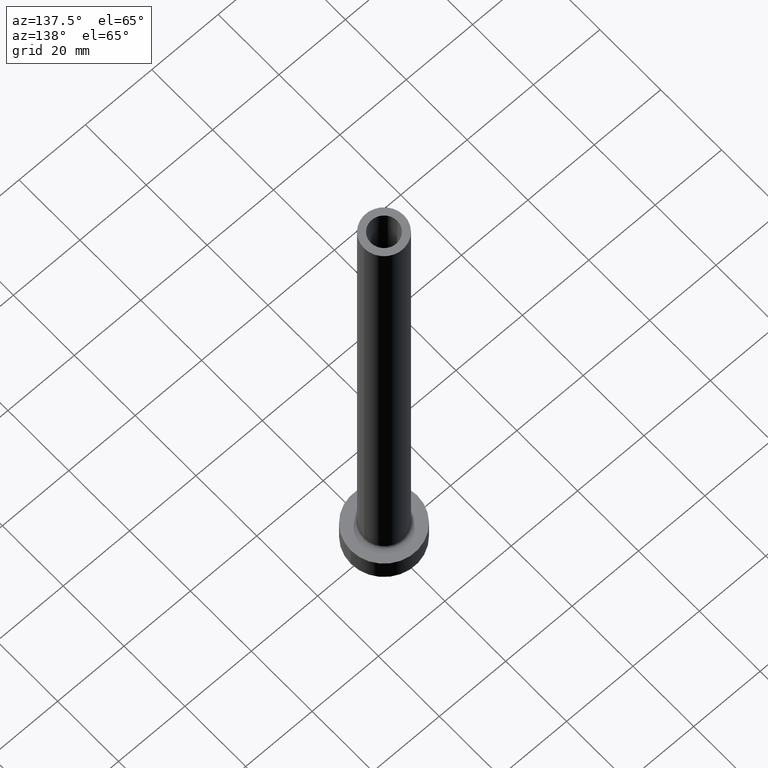
[diagram: clean part render]
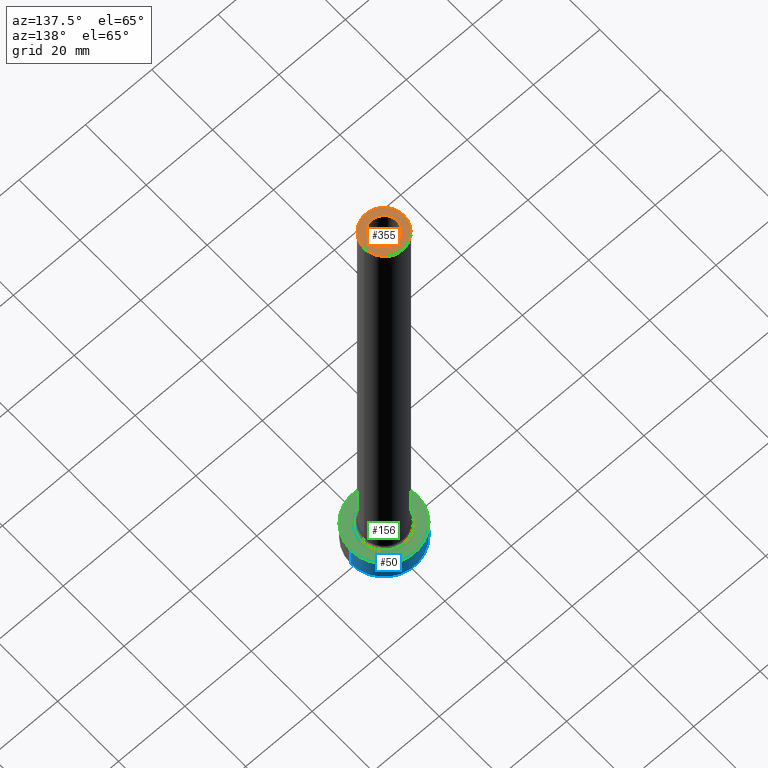
[diagram: same view with three faces highlighted in distinct colors, each labeled with its STEP entity id]
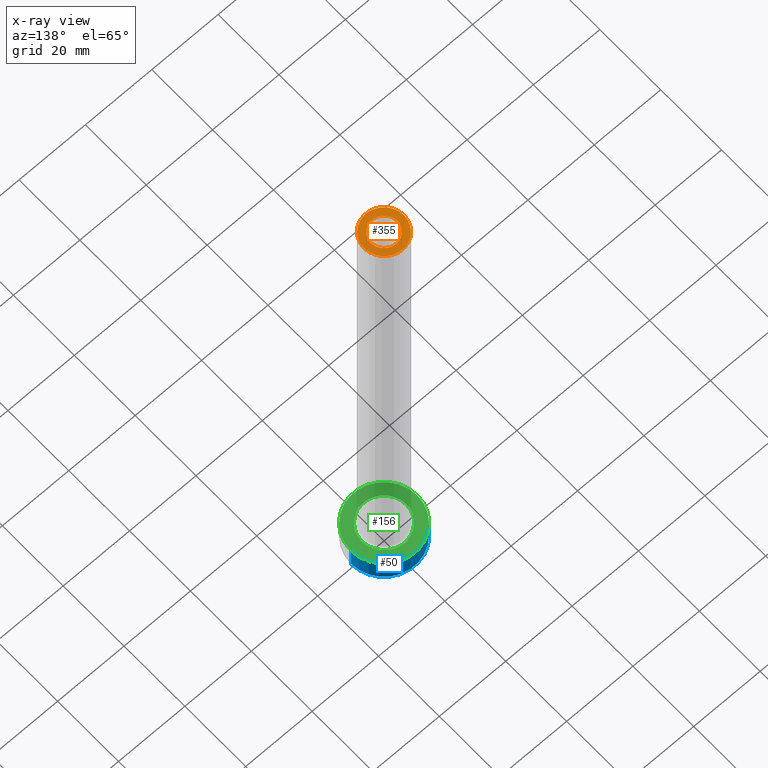
[diagram: x-ray of the same camera — body ghosted, the three highlighted faces saturated]
A machine part, auxiliary view with three faces highlighted in distinct colors.
The next image is the same camera in x-ray (body ghosted, the three faces saturated) — at least one of them is partly hidden behind the body in this view.
Their STEP definitions:

[orange] entity #355 — the highlighted planar face has unit normal (0, 0, 1).
#17 = CARTESIAN_POINT ( 'NONE',  ( 0.000000000000000000, 0.000000000000000000, 160.0000000000000000 ) ) ;
#18 = VERTEX_POINT ( 'NONE', #268 ) ;
#36 = FACE_BOUND ( 'NONE', #194, .T. ) ;
#37 = CIRCLE ( 'NONE', #177, 4.000000000000000000 ) ;
#41 = EDGE_CURVE ( 'NONE', #332, #313, #269, .T. ) ;
#52 = VERTEX_POINT ( 'NONE', #320 ) ;
#62 = AXIS2_PLACEMENT_3D ( 'NONE', #123, #272, #409 ) ;
#73 = CARTESIAN_POINT ( 'NONE',  ( -6.000000000000000888, 0.000000000000000000, 160.0000000000000000 ) ) ;
#105 = DIRECTION ( 'NONE',  ( 0.000000000000000000, 0.000000000000000000, 1.000000000000000000 ) ) ;
#111 = CARTESIAN_POINT ( 'NONE',  ( 0.000000000000000000, 0.000000000000000000, 160.0000000000000000 ) ) ;
#123 = CARTESIAN_POINT ( 'NONE',  ( 0.000000000000000000, 0.000000000000000000, 160.0000000000000000 ) ) ;
#143 = CARTESIAN_POINT ( 'NONE',  ( 0.000000000000000000, 0.000000000000000000, 160.0000000000000000 ) ) ;
#165 = ORIENTED_EDGE ( 'NONE', *, *, #41, .T. ) ;
#174 = CARTESIAN_POINT ( 'NONE',  ( 0.000000000000000000, 0.000000000000000000, 160.0000000000000000 ) ) ;
#175 = EDGE_CURVE ( 'NONE', #18, #52, #237, .T. ) ;
#177 = AXIS2_PLACEMENT_3D ( 'NONE', #111, #431, #362 ) ;
#179 = DIRECTION ( 'NONE',  ( 1.000000000000000000, 0.000000000000000000, 0.000000000000000000 ) ) ;
#194 = EDGE_LOOP ( 'NONE', ( #412, #264 ) ) ;
#210 = PLANE ( 'NONE',  #461 ) ;
#217 = DIRECTION ( 'NONE',  ( 1.000000000000000000, 0.000000000000000000, -0.000000000000000000 ) ) ;
#222 = EDGE_CURVE ( 'NONE', #52, #18, #37, .T. ) ;
#225 = ORIENTED_EDGE ( 'NONE', *, *, #298, .T. ) ;
#237 = CIRCLE ( 'NONE', #430, 4.000000000000000000 ) ;
#252 = CIRCLE ( 'NONE', #386, 6.000000000000000888 ) ;
#264 = ORIENTED_EDGE ( 'NONE', *, *, #222, .F. ) ;
#268 = CARTESIAN_POINT ( 'NONE',  ( -4.000000000000000000, 0.000000000000000000, 160.0000000000000000 ) ) ;
#269 = CIRCLE ( 'NONE', #62, 6.000000000000000888 ) ;
#272 = DIRECTION ( 'NONE',  ( 0.000000000000000000, 0.000000000000000000, 1.000000000000000000 ) ) ;
#290 = CARTESIAN_POINT ( 'NONE',  ( 6.000000000000000888, 7.347880794884120722E-16, 160.0000000000000000 ) ) ;
#298 = EDGE_CURVE ( 'NONE', #313, #332, #252, .T. ) ;
#313 = VERTEX_POINT ( 'NONE', #290 ) ;
#320 = CARTESIAN_POINT ( 'NONE',  ( 4.000000000000000000, 4.898587196589411843E-16, 160.0000000000000000 ) ) ;
#325 = FACE_OUTER_BOUND ( 'NONE', #420, .T. ) ;
#332 = VERTEX_POINT ( 'NONE', #73 ) ;
#349 = DIRECTION ( 'NONE',  ( 1.000000000000000000, 0.000000000000000000, 0.000000000000000000 ) ) ;
#355 = ADVANCED_FACE ( 'NONE', ( #36, #325 ), #210, .T. ) ;
#362 = DIRECTION ( 'NONE',  ( 1.000000000000000000, 0.000000000000000000, 0.000000000000000000 ) ) ;
#380 = DIRECTION ( 'NONE',  ( 0.000000000000000000, 0.000000000000000000, 1.000000000000000000 ) ) ;
#386 = AXIS2_PLACEMENT_3D ( 'NONE', #174, #398, #179 ) ;
#398 = DIRECTION ( 'NONE',  ( 0.000000000000000000, 0.000000000000000000, 1.000000000000000000 ) ) ;
#409 = DIRECTION ( 'NONE',  ( 1.000000000000000000, 0.000000000000000000, 0.000000000000000000 ) ) ;
#412 = ORIENTED_EDGE ( 'NONE', *, *, #175, .F. ) ;
#420 = EDGE_LOOP ( 'NONE', ( #165, #225 ) ) ;
#430 = AXIS2_PLACEMENT_3D ( 'NONE', #17, #380, #349 ) ;
#431 = DIRECTION ( 'NONE',  ( 0.000000000000000000, 0.000000000000000000, 1.000000000000000000 ) ) ;
#461 = AXIS2_PLACEMENT_3D ( 'NONE', #143, #105, #217 ) ;

[blue] entity #50 — the highlighted cylindrical surface (partial cylindrical patch) has radius 10 mm, axis along (-0, -0, -1).
#6 = VECTOR ( 'NONE', #93, 1000.000000000000000 ) ;
#21 = ORIENTED_EDGE ( 'NONE', *, *, #127, .F. ) ;
#22 = CARTESIAN_POINT ( 'NONE',  ( 10.00000000000000000, 1.224646799147353256E-15, 7.000000000000000000 ) ) ;
#30 = CARTESIAN_POINT ( 'NONE',  ( 0.000000000000000000, 0.000000000000000000, 7.000000000000000000 ) ) ;
#33 = DIRECTION ( 'NONE',  ( 1.000000000000000000, 0.000000000000000000, 0.000000000000000000 ) ) ;
#50 = ADVANCED_FACE ( 'NONE', ( #187 ), #354, .T. ) ;
#55 = CARTESIAN_POINT ( 'NONE',  ( -10.00000000000000000, 0.000000000000000000, 7.000000000000000000 ) ) ;
#57 = LINE ( 'NONE', #22, #370 ) ;
#86 = CARTESIAN_POINT ( 'NONE',  ( -10.00000000000000000, 0.000000000000000000, 0.000000000000000000 ) ) ;
#91 = AXIS2_PLACEMENT_3D ( 'NONE', #139, #245, #318 ) ;
#93 = DIRECTION ( 'NONE',  ( -0.000000000000000000, -0.000000000000000000, -1.000000000000000000 ) ) ;
#99 = CIRCLE ( 'NONE', #229, 10.00000000000000000 ) ;
#115 = EDGE_CURVE ( 'NONE', #304, #407, #257, .T. ) ;
#127 = EDGE_CURVE ( 'NONE', #439, #407, #239, .T. ) ;
#131 = AXIS2_PLACEMENT_3D ( 'NONE', #285, #451, #312 ) ;
#139 = CARTESIAN_POINT ( 'NONE',  ( 0.000000000000000000, 0.000000000000000000, 0.000000000000000000 ) ) ;
#163 = EDGE_CURVE ( 'NONE', #321, #304, #57, .T. ) ;
#178 = CARTESIAN_POINT ( 'NONE',  ( 10.00000000000000000, 1.224646799147353256E-15, 7.000000000000000000 ) ) ;
#187 = FACE_OUTER_BOUND ( 'NONE', #437, .T. ) ;
#189 = ORIENTED_EDGE ( 'NONE', *, *, #249, .F. ) ;
#229 = AXIS2_PLACEMENT_3D ( 'NONE', #30, #455, #33 ) ;
#239 = LINE ( 'NONE', #55, #6 ) ;
#245 = DIRECTION ( 'NONE',  ( 0.000000000000000000, 0.000000000000000000, 1.000000000000000000 ) ) ;
#249 = EDGE_CURVE ( 'NONE', #321, #439, #99, .T. ) ;
#257 = CIRCLE ( 'NONE', #91, 10.00000000000000000 ) ;
#260 = ORIENTED_EDGE ( 'NONE', *, *, #115, .T. ) ;
#285 = CARTESIAN_POINT ( 'NONE',  ( 0.000000000000000000, 0.000000000000000000, 7.000000000000000000 ) ) ;
#297 = CARTESIAN_POINT ( 'NONE',  ( -10.00000000000000000, 0.000000000000000000, 7.000000000000000000 ) ) ;
#304 = VERTEX_POINT ( 'NONE', #427 ) ;
#312 = DIRECTION ( 'NONE',  ( -1.000000000000000000, 0.000000000000000000, 0.000000000000000000 ) ) ;
#318 = DIRECTION ( 'NONE',  ( 1.000000000000000000, 0.000000000000000000, 0.000000000000000000 ) ) ;
#321 = VERTEX_POINT ( 'NONE', #178 ) ;
#354 = CYLINDRICAL_SURFACE ( 'NONE', #131, 10.00000000000000000 ) ;
#370 = VECTOR ( 'NONE', #411, 1000.000000000000000 ) ;
#407 = VERTEX_POINT ( 'NONE', #86 ) ;
#411 = DIRECTION ( 'NONE',  ( -0.000000000000000000, -0.000000000000000000, -1.000000000000000000 ) ) ;
#417 = ORIENTED_EDGE ( 'NONE', *, *, #163, .T. ) ;
#427 = CARTESIAN_POINT ( 'NONE',  ( 10.00000000000000000, 1.224646799147353256E-15, 0.000000000000000000 ) ) ;
#437 = EDGE_LOOP ( 'NONE', ( #189, #417, #260, #21 ) ) ;
#439 = VERTEX_POINT ( 'NONE', #297 ) ;
#451 = DIRECTION ( 'NONE',  ( -0.000000000000000000, -0.000000000000000000, -1.000000000000000000 ) ) ;
#455 = DIRECTION ( 'NONE',  ( 0.000000000000000000, 0.000000000000000000, 1.000000000000000000 ) ) ;

[green] entity #156 — the highlighted planar face has unit normal (0, 0, 1).
#13 = ORIENTED_EDGE ( 'NONE', *, *, #113, .T. ) ;
#15 = AXIS2_PLACEMENT_3D ( 'NONE', #347, #197, #133 ) ;
#30 = CARTESIAN_POINT ( 'NONE',  ( 0.000000000000000000, 0.000000000000000000, 7.000000000000000000 ) ) ;
#33 = DIRECTION ( 'NONE',  ( 1.000000000000000000, 0.000000000000000000, 0.000000000000000000 ) ) ;
#42 = DIRECTION ( 'NONE',  ( -0.000000000000000000, -0.000000000000000000, -1.000000000000000000 ) ) ;
#45 = CARTESIAN_POINT ( 'NONE',  ( -6.700000000000001066, 8.205133554287267548E-16, 7.000000000000006217 ) ) ;
#54 = FACE_OUTER_BOUND ( 'NONE', #299, .T. ) ;
#58 = ORIENTED_EDGE ( 'NONE', *, *, #404, .T. ) ;
#75 = CIRCLE ( 'NONE', #196, 6.700000000000001066 ) ;
#98 = DIRECTION ( 'NONE',  ( 1.000000000000000000, 0.000000000000000000, 0.000000000000000000 ) ) ;
#99 = CIRCLE ( 'NONE', #229, 10.00000000000000000 ) ;
#102 = FACE_BOUND ( 'NONE', #446, .T. ) ;
#113 = EDGE_CURVE ( 'NONE', #173, #448, #75, .T. ) ;
#128 = CARTESIAN_POINT ( 'NONE',  ( 6.700000000000001066, 0.000000000000000000, 7.000000000000006217 ) ) ;
#130 = CIRCLE ( 'NONE', #315, 6.700000000000001066 ) ;
#133 = DIRECTION ( 'NONE',  ( 1.000000000000000000, 0.000000000000000000, -0.000000000000000000 ) ) ;
#138 = EDGE_CURVE ( 'NONE', #439, #321, #243, .T. ) ;
#156 = ADVANCED_FACE ( 'NONE', ( #102, #54 ), #277, .T. ) ;
#173 = VERTEX_POINT ( 'NONE', #128 ) ;
#178 = CARTESIAN_POINT ( 'NONE',  ( 10.00000000000000000, 1.224646799147353256E-15, 7.000000000000000000 ) ) ;
#186 = DIRECTION ( 'NONE',  ( 1.000000000000000000, 0.000000000000000000, 0.000000000000000000 ) ) ;
#193 = CARTESIAN_POINT ( 'NONE',  ( 0.000000000000000000, 0.000000000000000000, 7.000000000000000000 ) ) ;
#196 = AXIS2_PLACEMENT_3D ( 'NONE', #311, #208, #98 ) ;
#197 = DIRECTION ( 'NONE',  ( 0.000000000000000000, 0.000000000000000000, 1.000000000000000000 ) ) ;
#208 = DIRECTION ( 'NONE',  ( -0.000000000000000000, -0.000000000000000000, -1.000000000000000000 ) ) ;
#229 = AXIS2_PLACEMENT_3D ( 'NONE', #30, #455, #33 ) ;
#241 = ORIENTED_EDGE ( 'NONE', *, *, #138, .T. ) ;
#243 = CIRCLE ( 'NONE', #376, 10.00000000000000000 ) ;
#249 = EDGE_CURVE ( 'NONE', #321, #439, #99, .T. ) ;
#274 = DIRECTION ( 'NONE',  ( 0.000000000000000000, 0.000000000000000000, 1.000000000000000000 ) ) ;
#277 = PLANE ( 'NONE',  #15 ) ;
#297 = CARTESIAN_POINT ( 'NONE',  ( -10.00000000000000000, 0.000000000000000000, 7.000000000000000000 ) ) ;
#299 = EDGE_LOOP ( 'NONE', ( #241, #390 ) ) ;
#311 = CARTESIAN_POINT ( 'NONE',  ( 0.000000000000000000, 0.000000000000000000, 7.000000000000000000 ) ) ;
#315 = AXIS2_PLACEMENT_3D ( 'NONE', #193, #42, #186 ) ;
#321 = VERTEX_POINT ( 'NONE', #178 ) ;
#347 = CARTESIAN_POINT ( 'NONE',  ( 0.000000000000000000, 0.000000000000000000, 7.000000000000000000 ) ) ;
#376 = AXIS2_PLACEMENT_3D ( 'NONE', #385, #274, #422 ) ;
#385 = CARTESIAN_POINT ( 'NONE',  ( 0.000000000000000000, 0.000000000000000000, 7.000000000000000000 ) ) ;
#390 = ORIENTED_EDGE ( 'NONE', *, *, #249, .T. ) ;
#404 = EDGE_CURVE ( 'NONE', #448, #173, #130, .T. ) ;
#422 = DIRECTION ( 'NONE',  ( 1.000000000000000000, 0.000000000000000000, 0.000000000000000000 ) ) ;
#439 = VERTEX_POINT ( 'NONE', #297 ) ;
#446 = EDGE_LOOP ( 'NONE', ( #13, #58 ) ) ;
#448 = VERTEX_POINT ( 'NONE', #45 ) ;
#455 = DIRECTION ( 'NONE',  ( 0.000000000000000000, 0.000000000000000000, 1.000000000000000000 ) ) ;